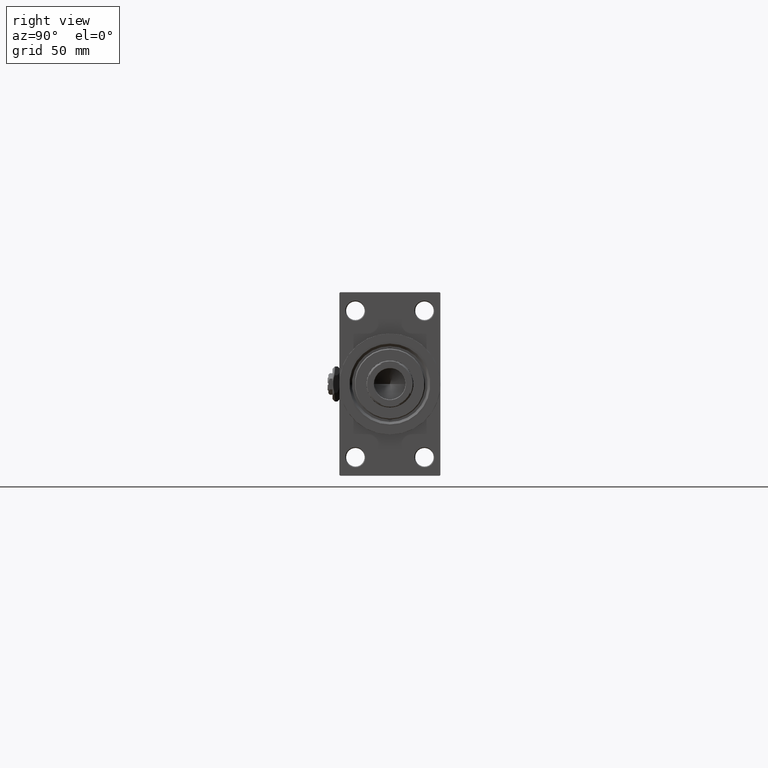
[diagram: clean part render]
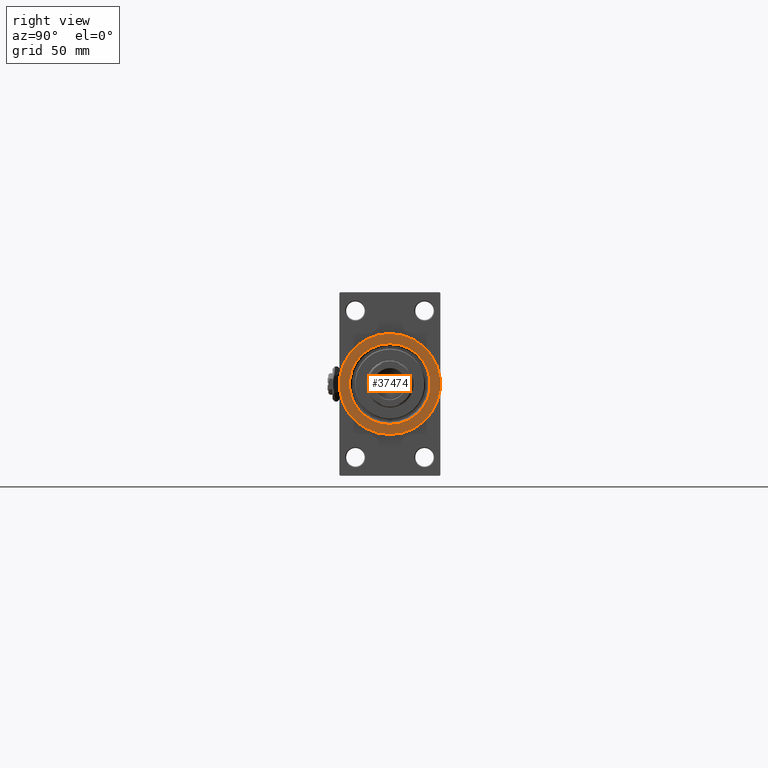
[diagram: same view with one face highlighted and labeled with its STEP entity id]
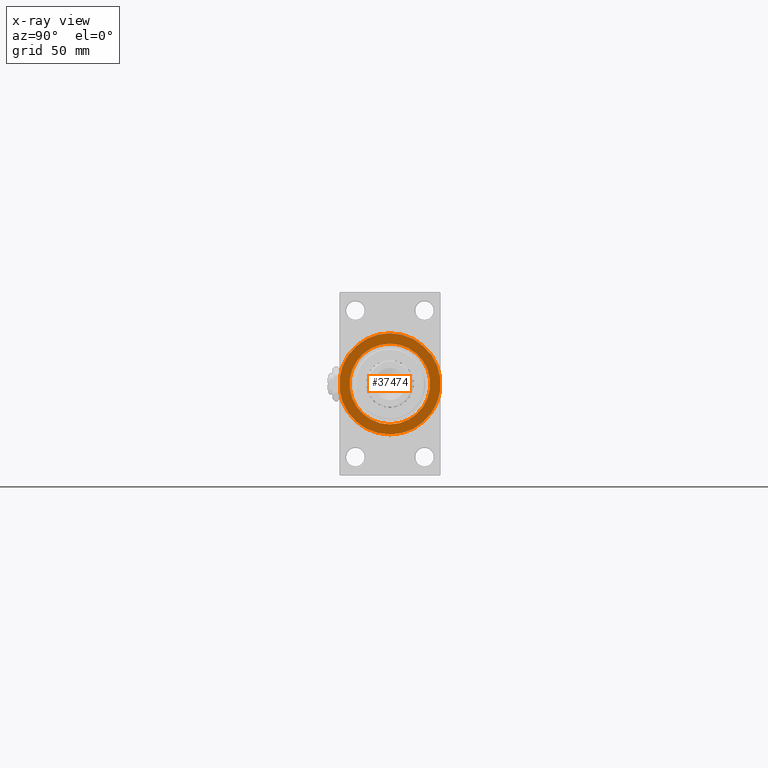
[diagram: x-ray of the same camera — body ghosted, the highlighted face saturated]
A machine part, right view. The second image highlights one B-rep face of the part: STEP entity #37474.
The next image is the same camera in x-ray: the body ghosted, the highlighted face saturated — about 0% of this face is hidden behind the body in this view.
In plain terms, the highlighted planar face has unit normal (1, 0, 0).
Its self-contained STEP definition (entity closure, byte-faithful):
#105 = CIRCLE ( 'NONE', #27950, 30.00000000000000000 ) ;
#802 = VERTEX_POINT ( 'NONE', #42998 ) ;
#936 = FACE_BOUND ( 'NONE', #12792, .T. ) ;
#2141 = CARTESIAN_POINT ( 'NONE',  ( 377.9999999999999432, 2.939152317953650655E-15, 24.00000000000002487 ) ) ;
#3189 = CARTESIAN_POINT ( 'NONE',  ( 377.9999999999999432, 0.000000000000000000, 0.000000000000000000 ) ) ;
#4600 = ORIENTED_EDGE ( 'NONE', *, *, #26073, .T. ) ;
#4730 = CIRCLE ( 'NONE', #8699, 30.00000000000000000 ) ;
#7437 = DIRECTION ( 'NONE',  ( -1.000000000000000000, -0.000000000000000000, -0.000000000000000000 ) ) ;
#7748 = DIRECTION ( 'NONE',  ( 1.000000000000000000, 0.000000000000000000, 0.000000000000000000 ) ) ;
#8699 = AXIS2_PLACEMENT_3D ( 'NONE', #3189, #45029, #22354 ) ;
#11162 = CARTESIAN_POINT ( 'NONE',  ( 377.9999999999999432, 0.000000000000000000, 0.000000000000000000 ) ) ;
#12526 = EDGE_CURVE ( 'NONE', #41046, #802, #4730, .T. ) ;
#12617 = CARTESIAN_POINT ( 'NONE',  ( 377.9999999999999432, 0.000000000000000000, 0.000000000000000000 ) ) ;
#12792 = EDGE_LOOP ( 'NONE', ( #29349, #26369 ) ) ;
#15459 = DIRECTION ( 'NONE',  ( 0.000000000000000000, 0.000000000000000000, -1.000000000000000000 ) ) ;
#15968 = CARTESIAN_POINT ( 'NONE',  ( 377.9999999999999432, 0.000000000000000000, 0.000000000000000000 ) ) ;
#16176 = CIRCLE ( 'NONE', #45610, 24.00000000000002487 ) ;
#17907 = AXIS2_PLACEMENT_3D ( 'NONE', #12617, #43500, #31795 ) ;
#19845 = FACE_OUTER_BOUND ( 'NONE', #40187, .T. ) ;
#22354 = DIRECTION ( 'NONE',  ( 0.000000000000000000, 0.000000000000000000, -1.000000000000000000 ) ) ;
#22382 = EDGE_CURVE ( 'NONE', #35949, #33514, #46956, .T. ) ;
#23122 = CARTESIAN_POINT ( 'NONE',  ( 377.9999999999999432, 0.000000000000000000, -24.00000000000002487 ) ) ;
#26073 = EDGE_CURVE ( 'NONE', #802, #41046, #105, .T. ) ;
#26369 = ORIENTED_EDGE ( 'NONE', *, *, #22382, .T. ) ;
#27950 = AXIS2_PLACEMENT_3D ( 'NONE', #15968, #7748, #15459 ) ;
#29349 = ORIENTED_EDGE ( 'NONE', *, *, #33629, .T. ) ;
#30072 = DIRECTION ( 'NONE',  ( 0.000000000000000000, 0.000000000000000000, -1.000000000000000000 ) ) ;
#30559 = DIRECTION ( 'NONE',  ( -1.000000000000000000, -0.000000000000000000, -0.000000000000000000 ) ) ;
#31795 = DIRECTION ( 'NONE',  ( 0.000000000000000000, 0.000000000000000000, -1.000000000000000000 ) ) ;
#33514 = VERTEX_POINT ( 'NONE', #23122 ) ;
#33629 = EDGE_CURVE ( 'NONE', #33514, #35949, #16176, .T. ) ;
#34292 = CARTESIAN_POINT ( 'NONE',  ( 377.9999999999999432, 0.000000000000000000, 0.000000000000000000 ) ) ;
#34991 = AXIS2_PLACEMENT_3D ( 'NONE', #34292, #30559, #30072 ) ;
#35949 = VERTEX_POINT ( 'NONE', #2141 ) ;
#37474 = ADVANCED_FACE ( 'NONE', ( #936, #19845 ), #46760, .T. ) ;
#40187 = EDGE_LOOP ( 'NONE', ( #42623, #4600 ) ) ;
#41046 = VERTEX_POINT ( 'NONE', #41253 ) ;
#41253 = CARTESIAN_POINT ( 'NONE',  ( 377.9999999999999432, 0.000000000000000000, 30.00000000000000000 ) ) ;
#41805 = DIRECTION ( 'NONE',  ( 0.000000000000000000, 0.000000000000000000, -1.000000000000000000 ) ) ;
#42623 = ORIENTED_EDGE ( 'NONE', *, *, #12526, .T. ) ;
#42998 = CARTESIAN_POINT ( 'NONE',  ( 377.9999999999999432, 3.673940397442059178E-15, -30.00000000000000000 ) ) ;
#43500 = DIRECTION ( 'NONE',  ( 1.000000000000000000, 0.000000000000000000, 0.000000000000000000 ) ) ;
#45029 = DIRECTION ( 'NONE',  ( 1.000000000000000000, 0.000000000000000000, 0.000000000000000000 ) ) ;
#45610 = AXIS2_PLACEMENT_3D ( 'NONE', #11162, #7437, #41805 ) ;
#46760 = PLANE ( 'NONE',  #17907 ) ;
#46956 = CIRCLE ( 'NONE', #34991, 24.00000000000002487 ) ;